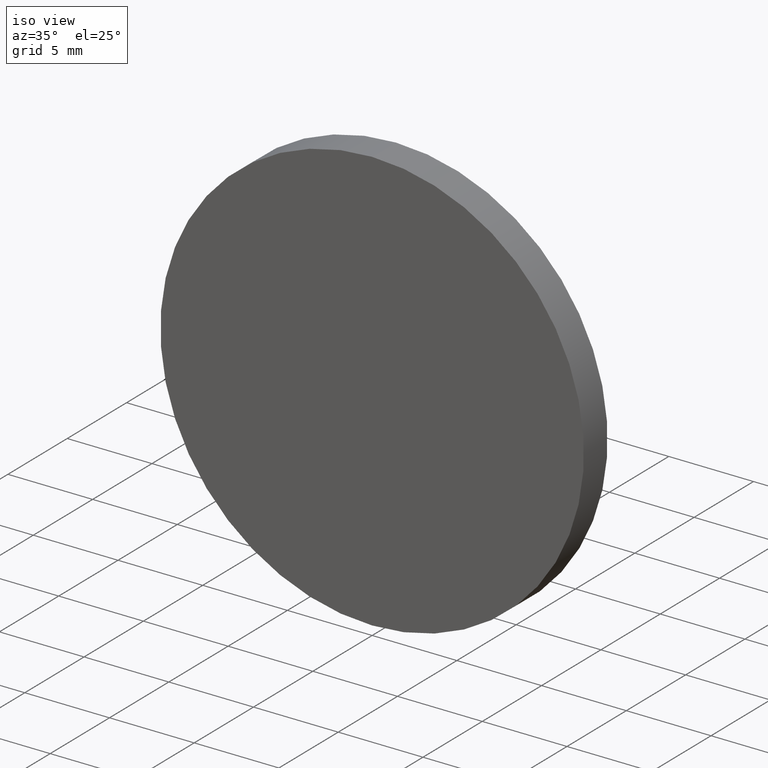
[diagram: clean part render]
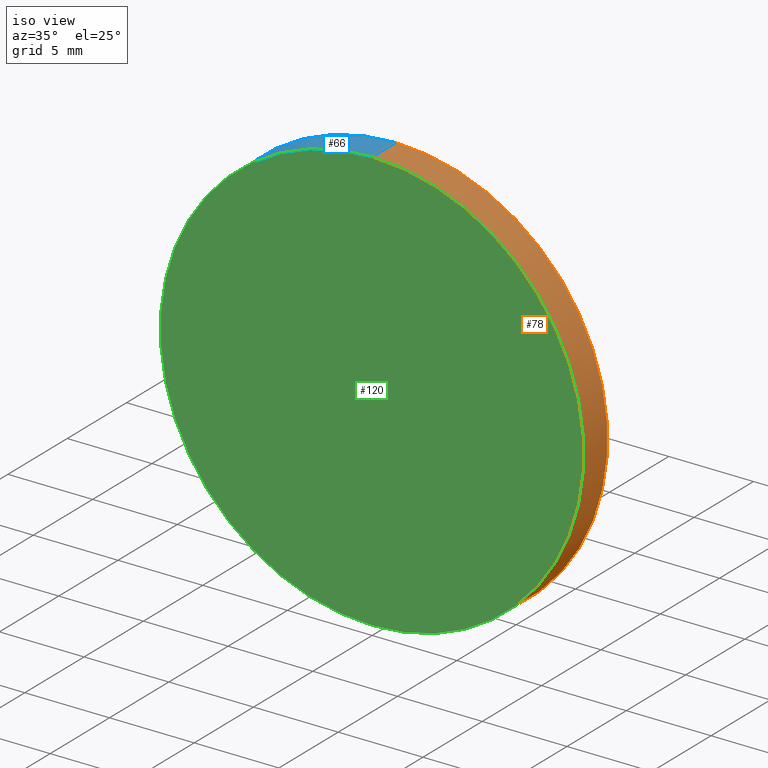
[diagram: same view with three faces highlighted in distinct colors, each labeled with its STEP entity id]
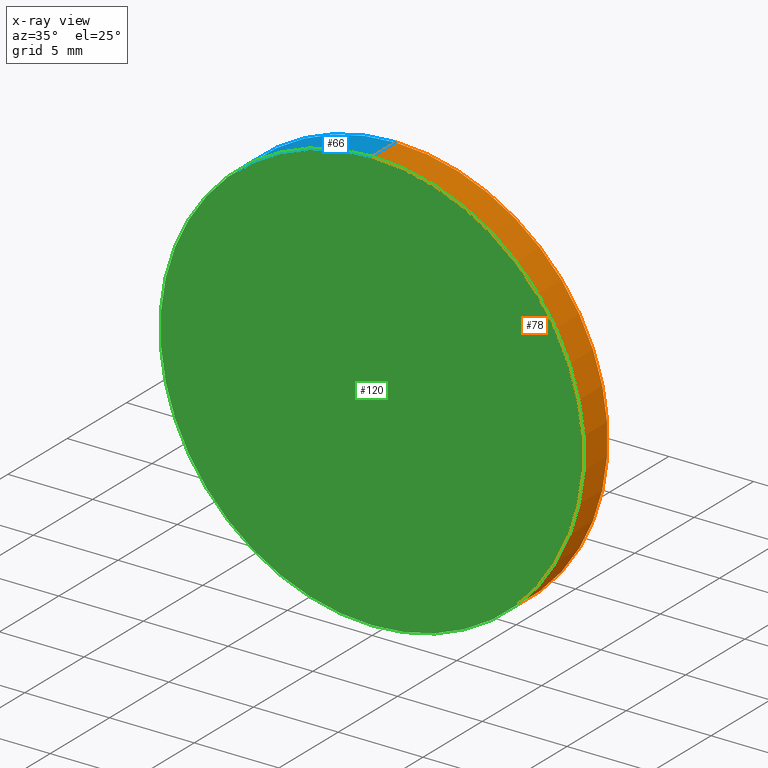
[diagram: x-ray of the same camera — body ghosted, the three highlighted faces saturated]
A machine part, iso view with three faces highlighted in distinct colors.
The next image is the same camera in x-ray (body ghosted, the three faces saturated) — at least one of them is partly hidden behind the body in this view.
Their STEP definitions:

[orange] entity #78 — the highlighted cylindrical surface (partial cylindrical patch) has radius 12.5 mm, axis along (-0, -1, -0).
#8 = CARTESIAN_POINT ( 'NONE',  ( 1.530808498934191500E-015, 2.000000000000000000, 12.50000000000000000 ) ) ;
#10 = CIRCLE ( 'NONE', #123, 12.50000000000000000 ) ;
#15 = CARTESIAN_POINT ( 'NONE',  ( 0.0000000000000000000, 2.000000000000000000, -12.50000000000000000 ) ) ;
#18 = ORIENTED_EDGE ( 'NONE', *, *, #110, .F. ) ;
#27 = CARTESIAN_POINT ( 'NONE',  ( 0.0000000000000000000, 0.0000000000000000000, -12.50000000000000000 ) ) ;
#30 = EDGE_CURVE ( 'NONE', #135, #103, #139, .T. ) ;
#31 = EDGE_CURVE ( 'NONE', #135, #122, #68, .T. ) ;
#33 = FACE_OUTER_BOUND ( 'NONE', #41, .T. ) ;
#36 = DIRECTION ( 'NONE',  ( 0.0000000000000000000, 0.0000000000000000000, 1.000000000000000000 ) ) ;
#39 = DIRECTION ( 'NONE',  ( -0.0000000000000000000, -1.000000000000000000, -0.0000000000000000000 ) ) ;
#41 = EDGE_LOOP ( 'NONE', ( #43, #111, #90, #18 ) ) ;
#43 = ORIENTED_EDGE ( 'NONE', *, *, #30, .F. ) ;
#47 = CARTESIAN_POINT ( 'NONE',  ( 0.0000000000000000000, 0.0000000000000000000, 0.0000000000000000000 ) ) ;
#48 = CARTESIAN_POINT ( 'NONE',  ( 1.530808498934191500E-015, 0.0000000000000000000, 12.50000000000000000 ) ) ;
#49 = CARTESIAN_POINT ( 'NONE',  ( 0.0000000000000000000, 2.000000000000000000, 0.0000000000000000000 ) ) ;
#50 = DIRECTION ( 'NONE',  ( 0.0000000000000000000, 0.0000000000000000000, 1.000000000000000000 ) ) ;
#52 = VECTOR ( 'NONE', #106, 1000.000000000000000 ) ;
#57 = AXIS2_PLACEMENT_3D ( 'NONE', #63, #129, #50 ) ;
#59 = CARTESIAN_POINT ( 'NONE',  ( 1.530808498934191500E-015, 2.000000000000000000, 12.50000000000000000 ) ) ;
#63 = CARTESIAN_POINT ( 'NONE',  ( 0.0000000000000000000, 2.000000000000000000, 0.0000000000000000000 ) ) ;
#65 = VECTOR ( 'NONE', #73, 1000.000000000000000 ) ;
#68 = LINE ( 'NONE', #8, #52 ) ;
#73 = DIRECTION ( 'NONE',  ( -0.0000000000000000000, -1.000000000000000000, -0.0000000000000000000 ) ) ;
#78 = ADVANCED_FACE ( 'NONE', ( #33 ), #98, .T. ) ;
#81 = VERTEX_POINT ( 'NONE', #27 ) ;
#86 = CARTESIAN_POINT ( 'NONE',  ( 0.0000000000000000000, 2.000000000000000000, -12.50000000000000000 ) ) ;
#90 = ORIENTED_EDGE ( 'NONE', *, *, #126, .T. ) ;
#93 = LINE ( 'NONE', #86, #65 ) ;
#98 = CYLINDRICAL_SURFACE ( 'NONE', #118, 12.50000000000000000 ) ;
#103 = VERTEX_POINT ( 'NONE', #15 ) ;
#106 = DIRECTION ( 'NONE',  ( -0.0000000000000000000, -1.000000000000000000, -0.0000000000000000000 ) ) ;
#110 = EDGE_CURVE ( 'NONE', #103, #81, #93, .T. ) ;
#111 = ORIENTED_EDGE ( 'NONE', *, *, #31, .T. ) ;
#114 = DIRECTION ( 'NONE',  ( 0.0000000000000000000, 1.000000000000000000, 0.0000000000000000000 ) ) ;
#118 = AXIS2_PLACEMENT_3D ( 'NONE', #49, #39, #127 ) ;
#122 = VERTEX_POINT ( 'NONE', #48 ) ;
#123 = AXIS2_PLACEMENT_3D ( 'NONE', #47, #114, #36 ) ;
#126 = EDGE_CURVE ( 'NONE', #122, #81, #10, .T. ) ;
#127 = DIRECTION ( 'NONE',  ( 0.0000000000000000000, 0.0000000000000000000, -1.000000000000000000 ) ) ;
#129 = DIRECTION ( 'NONE',  ( 0.0000000000000000000, 1.000000000000000000, 0.0000000000000000000 ) ) ;
#135 = VERTEX_POINT ( 'NONE', #59 ) ;
#139 = CIRCLE ( 'NONE', #57, 12.50000000000000000 ) ;

[blue] entity #66 — the highlighted cylindrical surface (partial cylindrical patch) has radius 12.5 mm, axis along (-0, -1, -0).
#1 = CIRCLE ( 'NONE', #101, 12.50000000000000000 ) ;
#3 = FACE_OUTER_BOUND ( 'NONE', #91, .T. ) ;
#6 = CYLINDRICAL_SURFACE ( 'NONE', #109, 12.50000000000000000 ) ;
#8 = CARTESIAN_POINT ( 'NONE',  ( 1.530808498934191500E-015, 2.000000000000000000, 12.50000000000000000 ) ) ;
#12 = ORIENTED_EDGE ( 'NONE', *, *, #21, .F. ) ;
#13 = CIRCLE ( 'NONE', #42, 12.50000000000000000 ) ;
#15 = CARTESIAN_POINT ( 'NONE',  ( 0.0000000000000000000, 2.000000000000000000, -12.50000000000000000 ) ) ;
#17 = DIRECTION ( 'NONE',  ( 0.0000000000000000000, 1.000000000000000000, 0.0000000000000000000 ) ) ;
#21 = EDGE_CURVE ( 'NONE', #103, #135, #13, .T. ) ;
#27 = CARTESIAN_POINT ( 'NONE',  ( 0.0000000000000000000, 0.0000000000000000000, -12.50000000000000000 ) ) ;
#31 = EDGE_CURVE ( 'NONE', #135, #122, #68, .T. ) ;
#37 = DIRECTION ( 'NONE',  ( 0.0000000000000000000, 1.000000000000000000, 0.0000000000000000000 ) ) ;
#40 = DIRECTION ( 'NONE',  ( 0.0000000000000000000, 0.0000000000000000000, -1.000000000000000000 ) ) ;
#42 = AXIS2_PLACEMENT_3D ( 'NONE', #100, #17, #88 ) ;
#45 = ORIENTED_EDGE ( 'NONE', *, *, #110, .T. ) ;
#48 = CARTESIAN_POINT ( 'NONE',  ( 1.530808498934191500E-015, 0.0000000000000000000, 12.50000000000000000 ) ) ;
#52 = VECTOR ( 'NONE', #106, 1000.000000000000000 ) ;
#59 = CARTESIAN_POINT ( 'NONE',  ( 1.530808498934191500E-015, 2.000000000000000000, 12.50000000000000000 ) ) ;
#61 = CARTESIAN_POINT ( 'NONE',  ( 0.0000000000000000000, 2.000000000000000000, 0.0000000000000000000 ) ) ;
#65 = VECTOR ( 'NONE', #73, 1000.000000000000000 ) ;
#66 = ADVANCED_FACE ( 'NONE', ( #3 ), #6, .T. ) ;
#68 = LINE ( 'NONE', #8, #52 ) ;
#73 = DIRECTION ( 'NONE',  ( -0.0000000000000000000, -1.000000000000000000, -0.0000000000000000000 ) ) ;
#81 = VERTEX_POINT ( 'NONE', #27 ) ;
#86 = CARTESIAN_POINT ( 'NONE',  ( 0.0000000000000000000, 2.000000000000000000, -12.50000000000000000 ) ) ;
#88 = DIRECTION ( 'NONE',  ( 0.0000000000000000000, 0.0000000000000000000, 1.000000000000000000 ) ) ;
#91 = EDGE_LOOP ( 'NONE', ( #104, #12, #45, #132 ) ) ;
#93 = LINE ( 'NONE', #86, #65 ) ;
#100 = CARTESIAN_POINT ( 'NONE',  ( 0.0000000000000000000, 2.000000000000000000, 0.0000000000000000000 ) ) ;
#101 = AXIS2_PLACEMENT_3D ( 'NONE', #115, #37, #105 ) ;
#103 = VERTEX_POINT ( 'NONE', #15 ) ;
#104 = ORIENTED_EDGE ( 'NONE', *, *, #31, .F. ) ;
#105 = DIRECTION ( 'NONE',  ( 0.0000000000000000000, 0.0000000000000000000, 1.000000000000000000 ) ) ;
#106 = DIRECTION ( 'NONE',  ( -0.0000000000000000000, -1.000000000000000000, -0.0000000000000000000 ) ) ;
#109 = AXIS2_PLACEMENT_3D ( 'NONE', #61, #116, #40 ) ;
#110 = EDGE_CURVE ( 'NONE', #103, #81, #93, .T. ) ;
#115 = CARTESIAN_POINT ( 'NONE',  ( 0.0000000000000000000, 0.0000000000000000000, 0.0000000000000000000 ) ) ;
#116 = DIRECTION ( 'NONE',  ( -0.0000000000000000000, -1.000000000000000000, -0.0000000000000000000 ) ) ;
#119 = EDGE_CURVE ( 'NONE', #81, #122, #1, .T. ) ;
#122 = VERTEX_POINT ( 'NONE', #48 ) ;
#132 = ORIENTED_EDGE ( 'NONE', *, *, #119, .T. ) ;
#135 = VERTEX_POINT ( 'NONE', #59 ) ;

[green] entity #120 — the highlighted planar face has unit normal (0, 1, 0).
#1 = CIRCLE ( 'NONE', #101, 12.50000000000000000 ) ;
#5 = PLANE ( 'NONE',  #44 ) ;
#10 = CIRCLE ( 'NONE', #123, 12.50000000000000000 ) ;
#26 = DIRECTION ( 'NONE',  ( 0.0000000000000000000, 1.000000000000000000, 0.0000000000000000000 ) ) ;
#27 = CARTESIAN_POINT ( 'NONE',  ( 0.0000000000000000000, 0.0000000000000000000, -12.50000000000000000 ) ) ;
#36 = DIRECTION ( 'NONE',  ( 0.0000000000000000000, 0.0000000000000000000, 1.000000000000000000 ) ) ;
#37 = DIRECTION ( 'NONE',  ( 0.0000000000000000000, 1.000000000000000000, 0.0000000000000000000 ) ) ;
#38 = FACE_OUTER_BOUND ( 'NONE', #133, .T. ) ;
#44 = AXIS2_PLACEMENT_3D ( 'NONE', #60, #26, #97 ) ;
#47 = CARTESIAN_POINT ( 'NONE',  ( 0.0000000000000000000, 0.0000000000000000000, 0.0000000000000000000 ) ) ;
#48 = CARTESIAN_POINT ( 'NONE',  ( 1.530808498934191500E-015, 0.0000000000000000000, 12.50000000000000000 ) ) ;
#60 = CARTESIAN_POINT ( 'NONE',  ( 0.0000000000000000000, 0.0000000000000000000, 0.0000000000000000000 ) ) ;
#76 = ORIENTED_EDGE ( 'NONE', *, *, #119, .F. ) ;
#81 = VERTEX_POINT ( 'NONE', #27 ) ;
#97 = DIRECTION ( 'NONE',  ( 0.0000000000000000000, -0.0000000000000000000, 1.000000000000000000 ) ) ;
#101 = AXIS2_PLACEMENT_3D ( 'NONE', #115, #37, #105 ) ;
#105 = DIRECTION ( 'NONE',  ( 0.0000000000000000000, 0.0000000000000000000, 1.000000000000000000 ) ) ;
#108 = ORIENTED_EDGE ( 'NONE', *, *, #126, .F. ) ;
#114 = DIRECTION ( 'NONE',  ( 0.0000000000000000000, 1.000000000000000000, 0.0000000000000000000 ) ) ;
#115 = CARTESIAN_POINT ( 'NONE',  ( 0.0000000000000000000, 0.0000000000000000000, 0.0000000000000000000 ) ) ;
#119 = EDGE_CURVE ( 'NONE', #81, #122, #1, .T. ) ;
#120 = ADVANCED_FACE ( 'NONE', ( #38 ), #5, .F. ) ;
#122 = VERTEX_POINT ( 'NONE', #48 ) ;
#123 = AXIS2_PLACEMENT_3D ( 'NONE', #47, #114, #36 ) ;
#126 = EDGE_CURVE ( 'NONE', #122, #81, #10, .T. ) ;
#133 = EDGE_LOOP ( 'NONE', ( #76, #108 ) ) ;